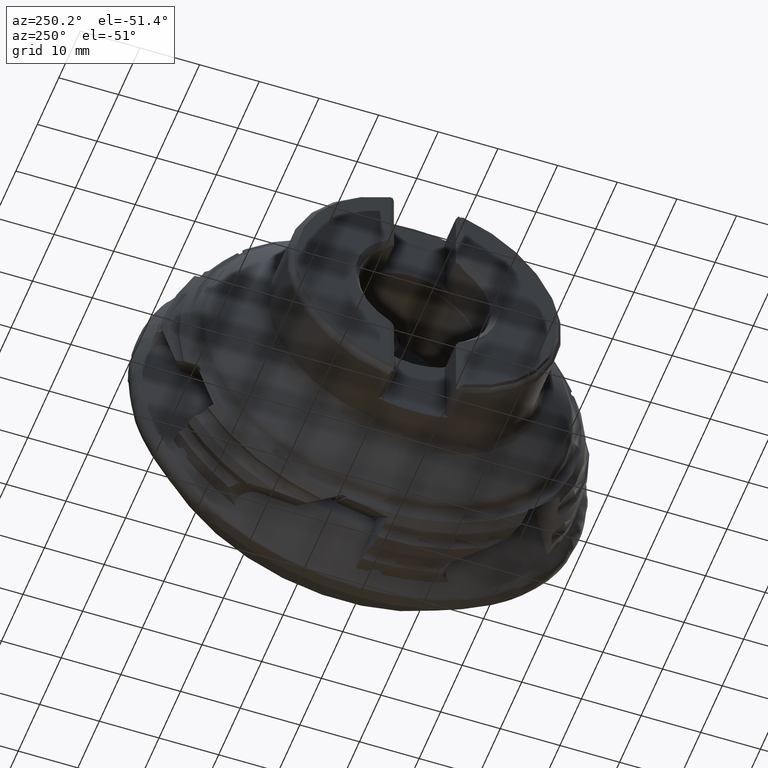
[diagram: clean part render]
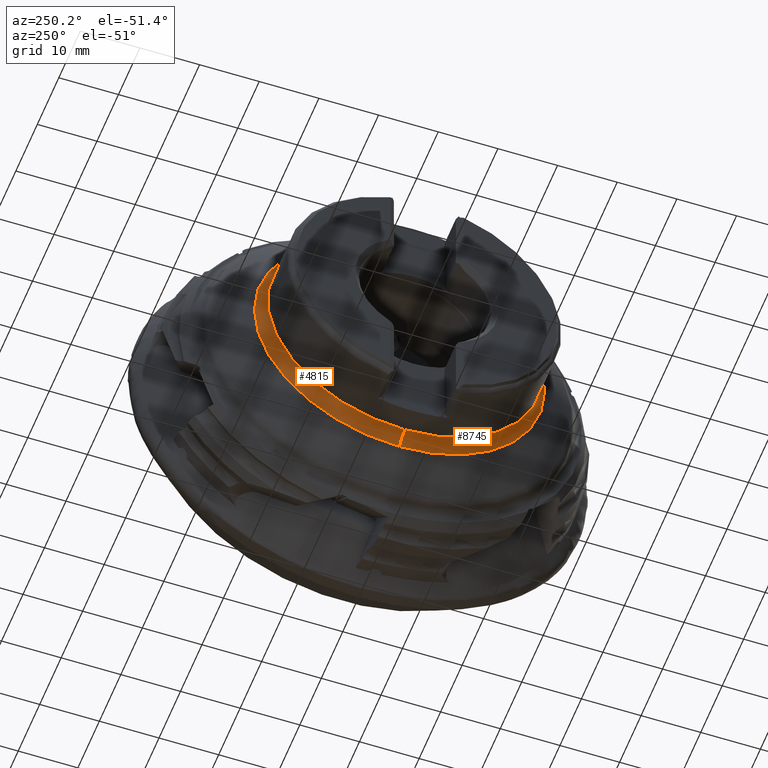
[diagram: same view with one multi-face feature highlighted, each face labeled with its STEP entity id]
A machine part, auxiliary view. The highlighted faces form ONE feature: a constant-radius fillet chain: 2 tangent blend faces with common blend radius 3 mm. The faces share edges in the B-rep.
Their STEP definitions:
[1] entity #8745 (Torus):
#485 = DIRECTION ( 'NONE',  ( 0.0000000000000000000, 1.000000000000000000, -1.224646799147353200E-016 ) ) ;
#508 = EDGE_CURVE ( 'NONE', #8474, #6565, #8846, .T. ) ;
#965 = CARTESIAN_POINT ( 'NONE',  ( -28.91188524561759000, 0.0000000000000000000, 0.0000000000000000000 ) ) ;
#1128 = CARTESIAN_POINT ( 'NONE',  ( -28.91188524561759000, 0.0000000000000000000, -25.99999999999999600 ) ) ;
#1232 = CARTESIAN_POINT ( 'NONE',  ( -28.91188524561759000, 0.0000000000000000000, 0.0000000000000000000 ) ) ;
#1916 = EDGE_CURVE ( 'NONE', #10906, #6565, #9556, .T. ) ;
#1934 = DIRECTION ( 'NONE',  ( 0.0000000000000000000, 0.0000000000000000000, -1.000000000000000000 ) ) ;
#2055 = EDGE_CURVE ( 'NONE', #3272, #10906, #6230, .T. ) ;
#2063 = DIRECTION ( 'NONE',  ( 0.0000000000000000000, 0.0000000000000000000, -1.000000000000000000 ) ) ;
#2836 = AXIS2_PLACEMENT_3D ( 'NONE', #6053, #485, #6974 ) ;
#3272 = VERTEX_POINT ( 'NONE', #8562 ) ;
#3689 = ORIENTED_EDGE ( 'NONE', *, *, #11747, .T. ) ;
#4141 = AXIS2_PLACEMENT_3D ( 'NONE', #1232, #5875, #8670 ) ;
#4146 = DIRECTION ( 'NONE',  ( 1.000000000000000000, -0.0000000000000000000, -0.0000000000000000000 ) ) ;
#4237 = AXIS2_PLACEMENT_3D ( 'NONE', #1128, #7624, #2063 ) ;
#4364 = FACE_OUTER_BOUND ( 'NONE', #7293, .T. ) ;
#5875 = DIRECTION ( 'NONE',  ( 1.000000000000000000, -0.0000000000000000000, -0.0000000000000000000 ) ) ;
#6053 = CARTESIAN_POINT ( 'NONE',  ( -28.91188524561759000, 3.184081677783117800E-015, 25.99999999999999600 ) ) ;
#6230 = CIRCLE ( 'NONE', #11657, 24.32169863349368600 ) ;
#6565 = VERTEX_POINT ( 'NONE', #11460 ) ;
#6974 = DIRECTION ( 'NONE',  ( 0.0000000000000000000, 1.224646799147352200E-016, 1.000000000000000000 ) ) ;
#7293 = EDGE_LOOP ( 'NONE', ( #10943, #3689, #10376, #10326 ) ) ;
#7368 = DIRECTION ( 'NONE',  ( 1.000000000000000000, -0.0000000000000000000, -0.0000000000000000000 ) ) ;
#7624 = DIRECTION ( 'NONE',  ( -0.0000000000000000000, -1.000000000000000000, -0.0000000000000000000 ) ) ;
#7853 = AXIS2_PLACEMENT_3D ( 'NONE', #965, #7368, #1934 ) ;
#7874 = CARTESIAN_POINT ( 'NONE',  ( -28.91188524561759000, 2.897618338086185800E-015, 22.99999999999999600 ) ) ;
#8474 = VERTEX_POINT ( 'NONE', #7874 ) ;
#8562 = CARTESIAN_POINT ( 'NONE',  ( -26.42526011842550900, 3.351901068229896400E-015, 24.32169863349368600 ) ) ;
#8670 = DIRECTION ( 'NONE',  ( 0.0000000000000000000, 0.0000000000000000000, -1.000000000000000000 ) ) ;
#8745 = ADVANCED_FACE ( 'NONE', ( #4364 ), #9002, .F. ) ;
#8846 = CIRCLE ( 'NONE', #7853, 22.99999999999999600 ) ;
#9002 = TOROIDAL_SURFACE ( 'NONE', #4141, 25.99999999999999600, 2.999999999999999100 ) ;
#9556 = CIRCLE ( 'NONE', #4237, 2.999999999999999100 ) ;
#9676 = CARTESIAN_POINT ( 'NONE',  ( -26.42526011842550900, 0.0000000000000000000, 0.0000000000000000000 ) ) ;
#10301 = CARTESIAN_POINT ( 'NONE',  ( -26.42526011842550900, 0.0000000000000000000, -24.32169863349368600 ) ) ;
#10326 = ORIENTED_EDGE ( 'NONE', *, *, #1916, .F. ) ;
#10376 = ORIENTED_EDGE ( 'NONE', *, *, #508, .T. ) ;
#10586 = DIRECTION ( 'NONE',  ( 0.0000000000000000000, 0.0000000000000000000, -1.000000000000000000 ) ) ;
#10906 = VERTEX_POINT ( 'NONE', #10301 ) ;
#10943 = ORIENTED_EDGE ( 'NONE', *, *, #2055, .F. ) ;
#11398 = CIRCLE ( 'NONE', #2836, 2.999999999999999100 ) ;
#11460 = CARTESIAN_POINT ( 'NONE',  ( -28.91188524561759000, 0.0000000000000000000, -22.99999999999999600 ) ) ;
#11657 = AXIS2_PLACEMENT_3D ( 'NONE', #9676, #4146, #10586 ) ;
#11747 = EDGE_CURVE ( 'NONE', #3272, #8474, #11398, .T. ) ;
[2] entity #4815 (Torus):
#73 = ORIENTED_EDGE ( 'NONE', *, *, #3762, .T. ) ;
#265 = AXIS2_PLACEMENT_3D ( 'NONE', #3970, #6793, #7717 ) ;
#356 = ORIENTED_EDGE ( 'NONE', *, *, #832, .F. ) ;
#434 = DIRECTION ( 'NONE',  ( 1.000000000000000000, -0.0000000000000000000, -0.0000000000000000000 ) ) ;
#485 = DIRECTION ( 'NONE',  ( 0.0000000000000000000, 1.000000000000000000, -1.224646799147353200E-016 ) ) ;
#832 = EDGE_CURVE ( 'NONE', #10906, #3272, #6525, .T. ) ;
#1128 = CARTESIAN_POINT ( 'NONE',  ( -28.91188524561759000, 0.0000000000000000000, -25.99999999999999600 ) ) ;
#1173 = AXIS2_PLACEMENT_3D ( 'NONE', #10284, #4780, #11210 ) ;
#1916 = EDGE_CURVE ( 'NONE', #10906, #6565, #9556, .T. ) ;
#2063 = DIRECTION ( 'NONE',  ( 0.0000000000000000000, 0.0000000000000000000, -1.000000000000000000 ) ) ;
#2836 = AXIS2_PLACEMENT_3D ( 'NONE', #6053, #485, #6974 ) ;
#3117 = ORIENTED_EDGE ( 'NONE', *, *, #11747, .F. ) ;
#3272 = VERTEX_POINT ( 'NONE', #8562 ) ;
#3597 = ORIENTED_EDGE ( 'NONE', *, *, #1916, .T. ) ;
#3762 = EDGE_CURVE ( 'NONE', #6565, #8474, #9882, .T. ) ;
#3970 = CARTESIAN_POINT ( 'NONE',  ( -28.91188524561759000, 0.0000000000000000000, 0.0000000000000000000 ) ) ;
#4165 = EDGE_LOOP ( 'NONE', ( #3117, #356, #3597, #73 ) ) ;
#4237 = AXIS2_PLACEMENT_3D ( 'NONE', #1128, #7624, #2063 ) ;
#4780 = DIRECTION ( 'NONE',  ( 1.000000000000000000, -0.0000000000000000000, -0.0000000000000000000 ) ) ;
#4815 = ADVANCED_FACE ( 'NONE', ( #9588 ), #9311, .F. ) ;
#6008 = CARTESIAN_POINT ( 'NONE',  ( -28.91188524561759000, 0.0000000000000000000, 0.0000000000000000000 ) ) ;
#6053 = CARTESIAN_POINT ( 'NONE',  ( -28.91188524561759000, 3.184081677783117800E-015, 25.99999999999999600 ) ) ;
#6525 = CIRCLE ( 'NONE', #1173, 24.32169863349368600 ) ;
#6565 = VERTEX_POINT ( 'NONE', #11460 ) ;
#6793 = DIRECTION ( 'NONE',  ( 1.000000000000000000, -0.0000000000000000000, -0.0000000000000000000 ) ) ;
#6928 = DIRECTION ( 'NONE',  ( 0.0000000000000000000, 0.0000000000000000000, -1.000000000000000000 ) ) ;
#6974 = DIRECTION ( 'NONE',  ( 0.0000000000000000000, 1.224646799147352200E-016, 1.000000000000000000 ) ) ;
#7624 = DIRECTION ( 'NONE',  ( -0.0000000000000000000, -1.000000000000000000, -0.0000000000000000000 ) ) ;
#7717 = DIRECTION ( 'NONE',  ( 0.0000000000000000000, 0.0000000000000000000, -1.000000000000000000 ) ) ;
#7874 = CARTESIAN_POINT ( 'NONE',  ( -28.91188524561759000, 2.897618338086185800E-015, 22.99999999999999600 ) ) ;
#8474 = VERTEX_POINT ( 'NONE', #7874 ) ;
#8562 = CARTESIAN_POINT ( 'NONE',  ( -26.42526011842550900, 3.351901068229896400E-015, 24.32169863349368600 ) ) ;
#9311 = TOROIDAL_SURFACE ( 'NONE', #265, 25.99999999999999600, 2.999999999999999100 ) ;
#9556 = CIRCLE ( 'NONE', #4237, 2.999999999999999100 ) ;
#9588 = FACE_OUTER_BOUND ( 'NONE', #4165, .T. ) ;
#9882 = CIRCLE ( 'NONE', #11742, 22.99999999999999600 ) ;
#10284 = CARTESIAN_POINT ( 'NONE',  ( -26.42526011842550900, 0.0000000000000000000, 0.0000000000000000000 ) ) ;
#10301 = CARTESIAN_POINT ( 'NONE',  ( -26.42526011842550900, 0.0000000000000000000, -24.32169863349368600 ) ) ;
#10906 = VERTEX_POINT ( 'NONE', #10301 ) ;
#11210 = DIRECTION ( 'NONE',  ( 0.0000000000000000000, 0.0000000000000000000, -1.000000000000000000 ) ) ;
#11398 = CIRCLE ( 'NONE', #2836, 2.999999999999999100 ) ;
#11460 = CARTESIAN_POINT ( 'NONE',  ( -28.91188524561759000, 0.0000000000000000000, -22.99999999999999600 ) ) ;
#11742 = AXIS2_PLACEMENT_3D ( 'NONE', #6008, #434, #6928 ) ;
#11747 = EDGE_CURVE ( 'NONE', #3272, #8474, #11398, .T. ) ;